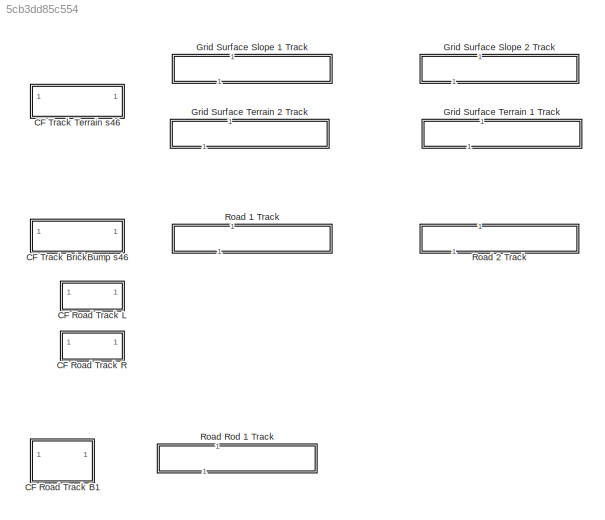
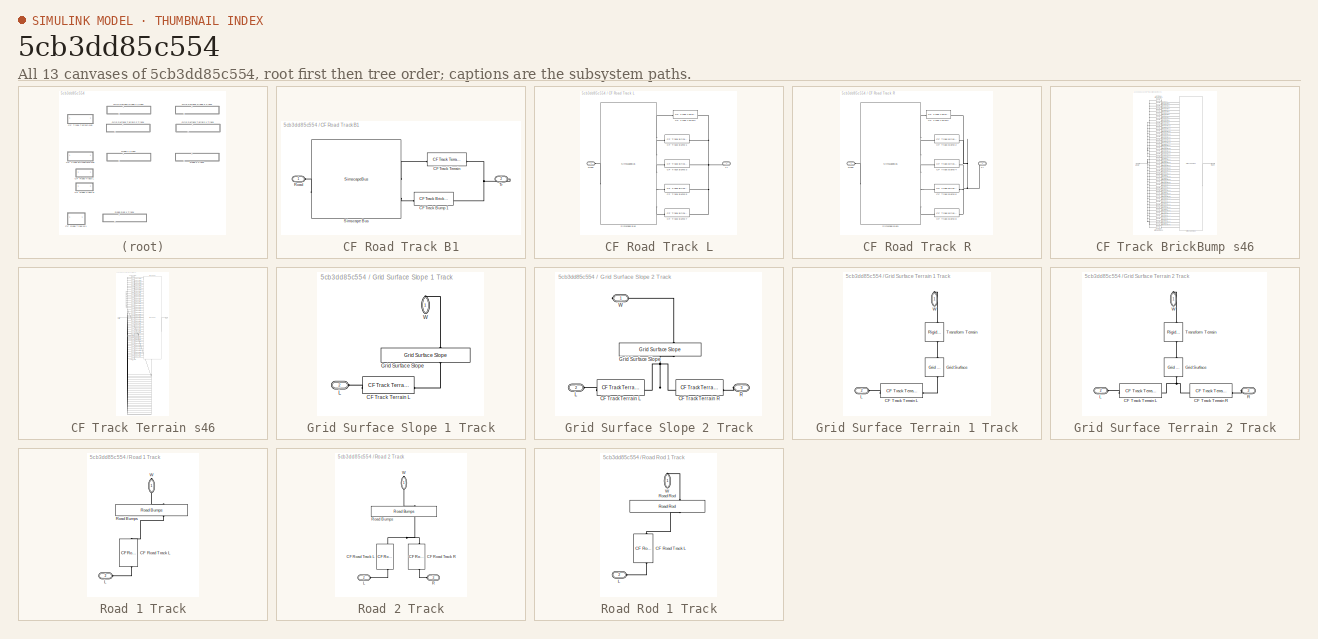
[diagram: thumbnail index - all 13 canvases of the model, root first then tree order]
MODEL slx_5cb3dd85c554
KIND library
CONFIG SolverName = VariableStepAuto
BLOCK [SubSystem] CF Road Track B1
BLOCK [Reference] CF Road Track B1/CF Track Bump 1  REF=$bdroot/CF Track BrickBump s46
  LibrarySourceBlock = sm_chain_drive_lib/CF_BrickBump_Full
  SourceBlock = $bdroot/CF Track BrickBump s46
  SourceType = Contact Forces, Full Track to Bump
BLOCK [Reference] CF Road Track B1/CF Track Terrain  REF=$bdroot/CF Track Terrain s46
  LibrarySourceBlock = sm_chain_drive_lib/CF_Road_Full
  SourceBlock = $bdroot/CF Track Terrain s46
  SourceType = Contact Forces, Full Track to Terrain
BLOCK [PMIOPort] CF Road Track B1/Road
  Side = Left
BLOCK [SimscapeBus] CF Road Track B1/Simscape Bus
  ConnectionType = Bus: CBO_Road8
  HierarchyStrings = Road;B1
  NameLocation = top
BLOCK [PMIOPort] CF Road Track B1/Tr
  Port = 2
  Side = Right
BLOCK [SubSystem] CF Road Track L
BLOCK [Reference] CF Road Track L/CF Track Bump 1  REF=$bdroot/CF Track BrickBump s46
  LibrarySourceBlock = sm_chain_drive_lib/CF_BrickBump_Full
  SourceBlock = $bdroot/CF Track BrickBump s46
  SourceType = Contact Forces, Full Track to Bump
BLOCK [Reference] CF Road Track L/CF Track Bump 3  REF=$bdroot/CF Track BrickBump s46
  LibrarySourceBlock = sm_chain_drive_lib/CF_BrickBump_Full
  SourceBlock = $bdroot/CF Track BrickBump s46
  SourceType = Contact Forces, Full Track to Bump
BLOCK [Reference] CF Road Track L/CF Track Bump 5  REF=$bdroot/CF Track BrickBump s46
  LibrarySourceBlock = sm_chain_drive_lib/CF_BrickBump_Full
  SourceBlock = $bdroot/CF Track BrickBump s46
  SourceType = Contact Forces, Full Track to Bump
BLOCK [Reference] CF Road Track L/CF Track Bump 7  REF=$bdroot/CF Track BrickBump s46
  LibrarySourceBlock = sm_chain_drive_lib/CF_BrickBump_Full
  SourceBlock = $bdroot/CF Track BrickBump s46
  SourceType = Contact Forces, Full Track to Bump
BLOCK [Reference] CF Road Track L/CF Track Terrain  REF=$bdroot/CF Track Terrain s46
  LibrarySourceBlock = sm_chain_drive_lib/CF_Road_Full
  SourceBlock = $bdroot/CF Track Terrain s46
  SourceType = Contact Forces, Full Track to Terrain
BLOCK [PMIOPort] CF Road Track L/Road
  Side = Left
BLOCK [SimscapeBus] CF Road Track L/Simscape Bus
  ConnectionType = Bus: CBO_Road8
  HierarchyStrings = Road;B1;B3;B5;B7
  NameLocation = top
BLOCK [PMIOPort] CF Road Track L/Tr
  Port = 2
  Side = Right
BLOCK [SubSystem] CF Road Track R
BLOCK [Reference] CF Road Track R/CF Track Bump 2  REF=$bdroot/CF Track BrickBump s46
  LibrarySourceBlock = sm_chain_drive_lib/CF_BrickBump_Full
  SourceBlock = $bdroot/CF Track BrickBump s46
  SourceType = Contact Forces, Full Track to Bump
BLOCK [Reference] CF Road Track R/CF Track Bump 4  REF=$bdroot/CF Track BrickBump s46
  LibrarySourceBlock = sm_chain_drive_lib/CF_BrickBump_Full
  SourceBlock = $bdroot/CF Track BrickBump s46
  SourceType = Contact Forces, Full Track to Bump
BLOCK [Reference] CF Road Track R/CF Track Bump 6  REF=$bdroot/CF Track BrickBump s46
  LibrarySourceBlock = sm_chain_drive_lib/CF_BrickBump_Full
  SourceBlock = $bdroot/CF Track BrickBump s46
  SourceType = Contact Forces, Full Track to Bump
BLOCK [Reference] CF Road Track R/CF Track Bump 8  REF=$bdroot/CF Track BrickBump s46
  LibrarySourceBlock = sm_chain_drive_lib/CF_BrickBump_Full
  SourceBlock = $bdroot/CF Track BrickBump s46
  SourceType = Contact Forces, Full Track to Bump
BLOCK [Reference] CF Road Track R/CF Track Terrain  REF=$bdroot/CF Track Terrain s46
  LibrarySourceBlock = sm_chain_drive_lib/CF_Road_Full
  SourceBlock = $bdroot/CF Track Terrain s46
  SourceType = Contact Forces, Full Track to Terrain
BLOCK [PMIOPort] CF Road Track R/Road
  Side = Left
BLOCK [SimscapeBus] CF Road Track R/Simscape Bus1
  ConnectionType = Bus: CBO_Road8
  HierarchyStrings = Road;B2;B4;B6;B8
  NameLocation = top
BLOCK [PMIOPort] CF Road Track R/Tr
  Port = 2
  Side = Right
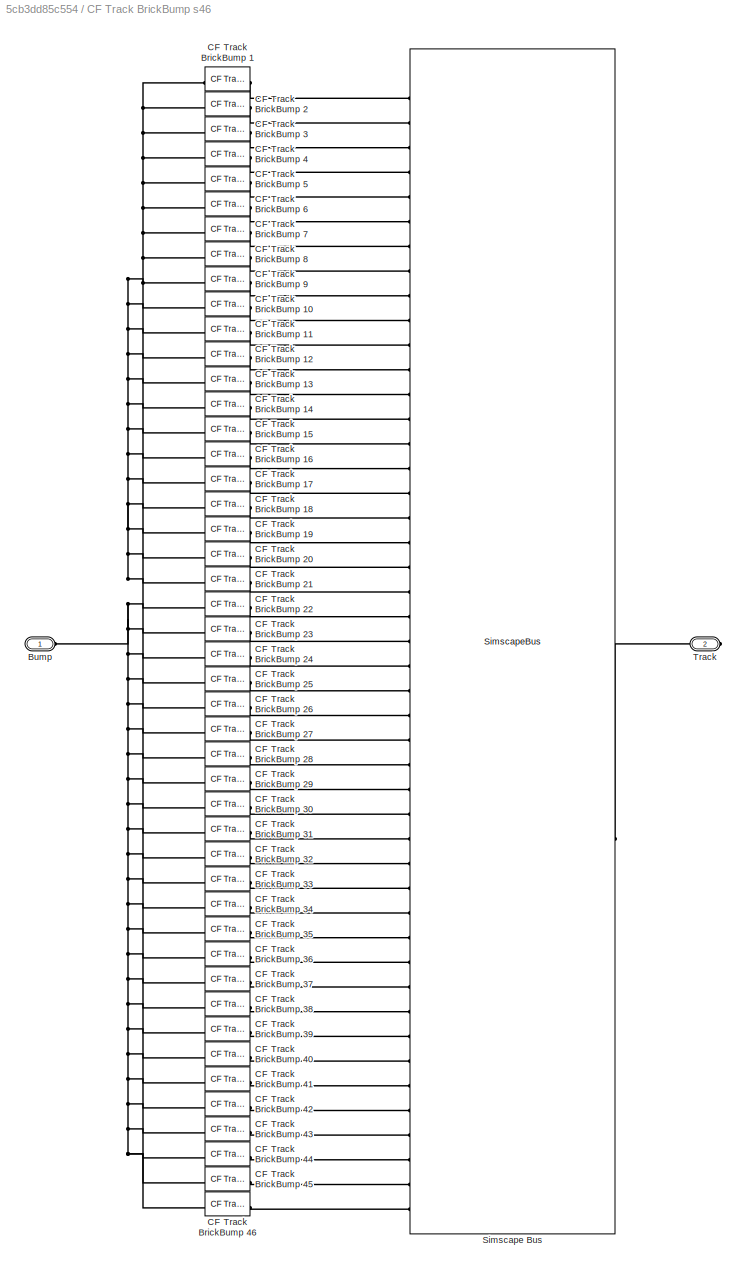
BLOCK [SubSystem] CF Track BrickBump s46
BLOCK [PMIOPort] CF Track BrickBump s46/Bump
  Side = Left
BLOCK [Reference] CF Track BrickBump s46/CF Track BrickBump 1  REF=sm_trackV_lib_terrain_contact_elem/CF Track BrickBump
  LibrarySourceBlock = sm_chain_drive_lib/CF_BrickBump
  NameLocation = right
  SourceBlock = sm_trackV_lib_terrain_contact_elem/CF Track BrickBump
  SourceType = Contact Force, Track Segment to Bump
BLOCK [Reference] CF Track BrickBump s46/CF Track BrickBump 10  REF=sm_trackV_lib_terrain_contact_elem/CF Track BrickBump
  LibrarySourceBlock = sm_chain_drive_lib/CF_BrickBump
  NameLocation = right
  SourceBlock = sm_trackV_lib_terrain_contact_elem/CF Track BrickBump
  SourceType = Contact Force, Track Segment to Bump
BLOCK [Reference] CF Track BrickBump s46/CF Track BrickBump 11  REF=sm_trackV_lib_terrain_contact_elem/CF Track BrickBump
  LibrarySourceBlock = sm_chain_drive_lib/CF_BrickBump
  NameLocation = right
  SourceBlock = sm_trackV_lib_terrain_contact_elem/CF Track BrickBump
  SourceType = Contact Force, Track Segment to Bump
BLOCK [Reference] CF Track BrickBump s46/CF Track BrickBump 12  REF=sm_trackV_lib_terrain_contact_elem/CF Track BrickBump
  LibrarySourceBlock = sm_chain_drive_lib/CF_BrickBump
  NameLocation = right
  SourceBlock = sm_trackV_lib_terrain_contact_elem/CF Track BrickBump
  SourceType = Contact Force, Track Segment to Bump
BLOCK [Reference] CF Track BrickBump s46/CF Track BrickBump 13  REF=sm_trackV_lib_terrain_contact_elem/CF Track BrickBump
  LibrarySourceBlock = sm_chain_drive_lib/CF_BrickBump
  NameLocation = right
  SourceBlock = sm_trackV_lib_terrain_contact_elem/CF Track BrickBump
  SourceType = Contact Force, Track Segment to Bump
BLOCK [Reference] CF Track BrickBump s46/CF Track BrickBump 14  REF=sm_trackV_lib_terrain_contact_elem/CF Track BrickBump
  LibrarySourceBlock = sm_chain_drive_lib/CF_BrickBump
  NameLocation = right
  SourceBlock = sm_trackV_lib_terrain_contact_elem/CF Track BrickBump
  SourceType = Contact Force, Track Segment to Bump
BLOCK [Reference] CF Track BrickBump s46/CF Track BrickBump 15  REF=sm_trackV_lib_terrain_contact_elem/CF Track BrickBump
  LibrarySourceBlock = sm_chain_drive_lib/CF_BrickBump
  NameLocation = right
  SourceBlock = sm_trackV_lib_terrain_contact_elem/CF Track BrickBump
  SourceType = Contact Force, Track Segment to Bump
BLOCK [Reference] CF Track BrickBump s46/CF Track BrickBump 16  REF=sm_trackV_lib_terrain_contact_elem/CF Track BrickBump
  LibrarySourceBlock = sm_chain_drive_lib/CF_BrickBump
  NameLocation = right
  SourceBlock = sm_trackV_lib_terrain_contact_elem/CF Track BrickBump
  SourceType = Contact Force, Track Segment to Bump
BLOCK [Reference] CF Track BrickBump s46/CF Track BrickBump 17  REF=sm_trackV_lib_terrain_contact_elem/CF Track BrickBump
  LibrarySourceBlock = sm_chain_drive_lib/CF_BrickBump
  NameLocation = right
  SourceBlock = sm_trackV_lib_terrain_contact_elem/CF Track BrickBump
  SourceType = Contact Force, Track Segment to Bump
BLOCK [Reference] CF Track BrickBump s46/CF Track BrickBump 18  REF=sm_trackV_lib_terrain_contact_elem/CF Track BrickBump
  LibrarySourceBlock = sm_chain_drive_lib/CF_BrickBump
  NameLocation = right
  SourceBlock = sm_trackV_lib_terrain_contact_elem/CF Track BrickBump
  SourceType = Contact Force, Track Segment to Bump
BLOCK [Reference] CF Track BrickBump s46/CF Track BrickBump 19  REF=sm_trackV_lib_terrain_contact_elem/CF Track BrickBump
  LibrarySourceBlock = sm_chain_drive_lib/CF_BrickBump
  NameLocation = right
  SourceBlock = sm_trackV_lib_terrain_contact_elem/CF Track BrickBump
  SourceType = Contact Force, Track Segment to Bump
BLOCK [Reference] CF Track BrickBump s46/CF Track BrickBump 2  REF=sm_trackV_lib_terrain_contact_elem/CF Track BrickBump
  LibrarySourceBlock = sm_chain_drive_lib/CF_BrickBump
  NameLocation = right
  SourceBlock = sm_trackV_lib_terrain_contact_elem/CF Track BrickBump
  SourceType = Contact Force, Track Segment to Bump
BLOCK [Reference] CF Track BrickBump s46/CF Track BrickBump 20  REF=sm_trackV_lib_terrain_contact_elem/CF Track BrickBump
  LibrarySourceBlock = sm_chain_drive_lib/CF_BrickBump
  NameLocation = right
  SourceBlock = sm_trackV_lib_terrain_contact_elem/CF Track BrickBump
  SourceType = Contact Force, Track Segment to Bump
BLOCK [Reference] CF Track BrickBump s46/CF Track BrickBump 21  REF=sm_trackV_lib_terrain_contact_elem/CF Track BrickBump
  LibrarySourceBlock = sm_chain_drive_lib/CF_BrickBump
  NameLocation = right
  SourceBlock = sm_trackV_lib_terrain_contact_elem/CF Track BrickBump
  SourceType = Contact Force, Track Segment to Bump
BLOCK [Reference] CF Track BrickBump s46/CF Track BrickBump 22  REF=sm_trackV_lib_terrain_contact_elem/CF Track BrickBump
  LibrarySourceBlock = sm_chain_drive_lib/CF_BrickBump
  NameLocation = right
  SourceBlock = sm_trackV_lib_terrain_contact_elem/CF Track BrickBump
  SourceType = Contact Force, Track Segment to Bump
BLOCK [Reference] CF Track BrickBump s46/CF Track BrickBump 23  REF=sm_trackV_lib_terrain_contact_elem/CF Track BrickBump
  LibrarySourceBlock = sm_chain_drive_lib/CF_BrickBump
  NameLocation = right
  SourceBlock = sm_trackV_lib_terrain_contact_elem/CF Track BrickBump
  SourceType = Contact Force, Track Segment to Bump
BLOCK [Reference] CF Track BrickBump s46/CF Track BrickBump 24  REF=sm_trackV_lib_terrain_contact_elem/CF Track BrickBump
  LibrarySourceBlock = sm_chain_drive_lib/CF_BrickBump
  NameLocation = right
  SourceBlock = sm_trackV_lib_terrain_contact_elem/CF Track BrickBump
  SourceType = Contact Force, Track Segment to Bump
BLOCK [Reference] CF Track BrickBump s46/CF Track BrickBump 25  REF=sm_trackV_lib_terrain_contact_elem/CF Track BrickBump
  LibrarySourceBlock = sm_chain_drive_lib/CF_BrickBump
  NameLocation = right
  SourceBlock = sm_trackV_lib_terrain_contact_elem/CF Track BrickBump
  SourceType = Contact Force, Track Segment to Bump
BLOCK [Reference] CF Track BrickBump s46/CF Track BrickBump 26  REF=sm_trackV_lib_terrain_contact_elem/CF Track BrickBump
  LibrarySourceBlock = sm_chain_drive_lib/CF_BrickBump
  NameLocation = right
  SourceBlock = sm_trackV_lib_terrain_contact_elem/CF Track BrickBump
  SourceType = Contact Force, Track Segment to Bump
BLOCK [Reference] CF Track BrickBump s46/CF Track BrickBump 27  REF=sm_trackV_lib_terrain_contact_elem/CF Track BrickBump
  LibrarySourceBlock = sm_chain_drive_lib/CF_BrickBump
  NameLocation = right
  SourceBlock = sm_trackV_lib_terrain_contact_elem/CF Track BrickBump
  SourceType = Contact Force, Track Segment to Bump
BLOCK [Reference] CF Track BrickBump s46/CF Track BrickBump 28  REF=sm_trackV_lib_terrain_contact_elem/CF Track BrickBump
  LibrarySourceBlock = sm_chain_drive_lib/CF_BrickBump
  NameLocation = right
  SourceBlock = sm_trackV_lib_terrain_contact_elem/CF Track BrickBump
  SourceType = Contact Force, Track Segment to Bump
BLOCK [Reference] CF Track BrickBump s46/CF Track BrickBump 29  REF=sm_trackV_lib_terrain_contact_elem/CF Track BrickBump
  LibrarySourceBlock = sm_chain_drive_lib/CF_BrickBump
  NameLocation = right
  SourceBlock = sm_trackV_lib_terrain_contact_elem/CF Track BrickBump
  SourceType = Contact Force, Track Segment to Bump
BLOCK [Reference] CF Track BrickBump s46/CF Track BrickBump 3  REF=sm_trackV_lib_terrain_contact_elem/CF Track BrickBump
  LibrarySourceBlock = sm_chain_drive_lib/CF_BrickBump
  NameLocation = right
  SourceBlock = sm_trackV_lib_terrain_contact_elem/CF Track BrickBump
  SourceType = Contact Force, Track Segment to Bump
BLOCK [Reference] CF Track BrickBump s46/CF Track BrickBump 30  REF=sm_trackV_lib_terrain_contact_elem/CF Track BrickBump
  LibrarySourceBlock = sm_chain_drive_lib/CF_BrickBump
  NameLocation = right
  SourceBlock = sm_trackV_lib_terrain_contact_elem/CF Track BrickBump
  SourceType = Contact Force, Track Segment to Bump
BLOCK [Reference] CF Track BrickBump s46/CF Track BrickBump 31  REF=sm_trackV_lib_terrain_contact_elem/CF Track BrickBump
  LibrarySourceBlock = sm_chain_drive_lib/CF_BrickBump
  NameLocation = right
  SourceBlock = sm_trackV_lib_terrain_contact_elem/CF Track BrickBump
  SourceType = Contact Force, Track Segment to Bump
BLOCK [Reference] CF Track BrickBump s46/CF Track BrickBump 32  REF=sm_trackV_lib_terrain_contact_elem/CF Track BrickBump
  LibrarySourceBlock = sm_chain_drive_lib/CF_BrickBump
  NameLocation = right
  SourceBlock = sm_trackV_lib_terrain_contact_elem/CF Track BrickBump
  SourceType = Contact Force, Track Segment to Bump
BLOCK [Reference] CF Track BrickBump s46/CF Track BrickBump 33  REF=sm_trackV_lib_terrain_contact_elem/CF Track BrickBump
  LibrarySourceBlock = sm_chain_drive_lib/CF_BrickBump
  NameLocation = right
  SourceBlock = sm_trackV_lib_terrain_contact_elem/CF Track BrickBump
  SourceType = Contact Force, Track Segment to Bump
BLOCK [Reference] CF Track BrickBump s46/CF Track BrickBump 34  REF=sm_trackV_lib_terrain_contact_elem/CF Track BrickBump
  LibrarySourceBlock = sm_chain_drive_lib/CF_BrickBump
  NameLocation = right
  SourceBlock = sm_trackV_lib_terrain_contact_elem/CF Track BrickBump
  SourceType = Contact Force, Track Segment to Bump
BLOCK [Reference] CF Track BrickBump s46/CF Track BrickBump 35  REF=sm_trackV_lib_terrain_contact_elem/CF Track BrickBump
  LibrarySourceBlock = sm_chain_drive_lib/CF_BrickBump
  NameLocation = right
  SourceBlock = sm_trackV_lib_terrain_contact_elem/CF Track BrickBump
  SourceType = Contact Force, Track Segment to Bump
BLOCK [Reference] CF Track BrickBump s46/CF Track BrickBump 36  REF=sm_trackV_lib_terrain_contact_elem/CF Track BrickBump
  LibrarySourceBlock = sm_chain_drive_lib/CF_BrickBump
  NameLocation = right
  SourceBlock = sm_trackV_lib_terrain_contact_elem/CF Track BrickBump
  SourceType = Contact Force, Track Segment to Bump
BLOCK [Reference] CF Track BrickBump s46/CF Track BrickBump 37  REF=sm_trackV_lib_terrain_contact_elem/CF Track BrickBump
  LibrarySourceBlock = sm_chain_drive_lib/CF_BrickBump
  NameLocation = right
  SourceBlock = sm_trackV_lib_terrain_contact_elem/CF Track BrickBump
  SourceType = Contact Force, Track Segment to Bump
BLOCK [Reference] CF Track BrickBump s46/CF Track BrickBump 38  REF=sm_trackV_lib_terrain_contact_elem/CF Track BrickBump
  LibrarySourceBlock = sm_chain_drive_lib/CF_BrickBump
  NameLocation = right
  SourceBlock = sm_trackV_lib_terrain_contact_elem/CF Track BrickBump
  SourceType = Contact Force, Track Segment to Bump
BLOCK [Reference] CF Track BrickBump s46/CF Track BrickBump 39  REF=sm_trackV_lib_terrain_contact_elem/CF Track BrickBump
  LibrarySourceBlock = sm_chain_drive_lib/CF_BrickBump
  NameLocation = right
  SourceBlock = sm_trackV_lib_terrain_contact_elem/CF Track BrickBump
  SourceType = Contact Force, Track Segment to Bump
BLOCK [Reference] CF Track BrickBump s46/CF Track BrickBump 4  REF=sm_trackV_lib_terrain_contact_elem/CF Track BrickBump
  LibrarySourceBlock = sm_chain_drive_lib/CF_BrickBump
  NameLocation = right
  SourceBlock = sm_trackV_lib_terrain_contact_elem/CF Track BrickBump
  SourceType = Contact Force, Track Segment to Bump
BLOCK [Reference] CF Track BrickBump s46/CF Track BrickBump 40  REF=sm_trackV_lib_terrain_contact_elem/CF Track BrickBump
  LibrarySourceBlock = sm_chain_drive_lib/CF_BrickBump
  NameLocation = right
  SourceBlock = sm_trackV_lib_terrain_contact_elem/CF Track BrickBump
  SourceType = Contact Force, Track Segment to Bump
BLOCK [Reference] CF Track BrickBump s46/CF Track BrickBump 41  REF=sm_trackV_lib_terrain_contact_elem/CF Track BrickBump
  LibrarySourceBlock = sm_chain_drive_lib/CF_BrickBump
  NameLocation = right
  SourceBlock = sm_trackV_lib_terrain_contact_elem/CF Track BrickBump
  SourceType = Contact Force, Track Segment to Bump
BLOCK [Reference] CF Track BrickBump s46/CF Track BrickBump 42  REF=sm_trackV_lib_terrain_contact_elem/CF Track BrickBump
  LibrarySourceBlock = sm_chain_drive_lib/CF_BrickBump
  NameLocation = right
  SourceBlock = sm_trackV_lib_terrain_contact_elem/CF Track BrickBump
  SourceType = Contact Force, Track Segment to Bump
BLOCK [Reference] CF Track BrickBump s46/CF Track BrickBump 43  REF=sm_trackV_lib_terrain_contact_elem/CF Track BrickBump
  LibrarySourceBlock = sm_chain_drive_lib/CF_BrickBump
  NameLocation = right
  SourceBlock = sm_trackV_lib_terrain_contact_elem/CF Track BrickBump
  SourceType = Contact Force, Track Segment to Bump
BLOCK [Reference] CF Track BrickBump s46/CF Track BrickBump 44  REF=sm_trackV_lib_terrain_contact_elem/CF Track BrickBump
  LibrarySourceBlock = sm_chain_drive_lib/CF_BrickBump
  NameLocation = right
  SourceBlock = sm_trackV_lib_terrain_contact_elem/CF Track BrickBump
  SourceType = Contact Force, Track Segment to Bump
BLOCK [Reference] CF Track BrickBump s46/CF Track BrickBump 45  REF=sm_trackV_lib_terrain_contact_elem/CF Track BrickBump
  LibrarySourceBlock = sm_chain_drive_lib/CF_BrickBump
  NameLocation = right
  SourceBlock = sm_trackV_lib_terrain_contact_elem/CF Track BrickBump
  SourceType = Contact Force, Track Segment to Bump
BLOCK [Reference] CF Track BrickBump s46/CF Track BrickBump 46  REF=sm_trackV_lib_terrain_contact_elem/CF Track BrickBump
  LibrarySourceBlock = sm_chain_drive_lib/CF_BrickBump
  NameLocation = right
  SourceBlock = sm_trackV_lib_terrain_contact_elem/CF Track BrickBump
  SourceType = Contact Force, Track Segment to Bump
BLOCK [Reference] CF Track BrickBump s46/CF Track BrickBump 5  REF=sm_trackV_lib_terrain_contact_elem/CF Track BrickBump
  LibrarySourceBlock = sm_chain_drive_lib/CF_BrickBump
  NameLocation = right
  SourceBlock = sm_trackV_lib_terrain_contact_elem/CF Track BrickBump
  SourceType = Contact Force, Track Segment to Bump
BLOCK [Reference] CF Track BrickBump s46/CF Track BrickBump 6  REF=sm_trackV_lib_terrain_contact_elem/CF Track BrickBump
  LibrarySourceBlock = sm_chain_drive_lib/CF_BrickBump
  NameLocation = right
  SourceBlock = sm_trackV_lib_terrain_contact_elem/CF Track BrickBump
  SourceType = Contact Force, Track Segment to Bump
BLOCK [Reference] CF Track BrickBump s46/CF Track BrickBump 7  REF=sm_trackV_lib_terrain_contact_elem/CF Track BrickBump
  LibrarySourceBlock = sm_chain_drive_lib/CF_BrickBump
  NameLocation = right
  SourceBlock = sm_trackV_lib_terrain_contact_elem/CF Track BrickBump
  SourceType = Contact Force, Track Segment to Bump
BLOCK [Reference] CF Track BrickBump s46/CF Track BrickBump 8  REF=sm_trackV_lib_terrain_contact_elem/CF Track BrickBump
  LibrarySourceBlock = sm_chain_drive_lib/CF_BrickBump
  NameLocation = right
  SourceBlock = sm_trackV_lib_terrain_contact_elem/CF Track BrickBump
  SourceType = Contact Force, Track Segment to Bump
BLOCK [Reference] CF Track BrickBump s46/CF Track BrickBump 9  REF=sm_trackV_lib_terrain_contact_elem/CF Track BrickBump
  LibrarySourceBlock = sm_chain_drive_lib/CF_BrickBump
  NameLocation = right
  SourceBlock = sm_trackV_lib_terrain_contact_elem/CF Track BrickBump
  SourceType = Contact Force, Track Segment to Bump
BLOCK [SimscapeBus] CF Track BrickBump s46/Simscape Bus
  ConnectionType = Bus: CBO_Chain46
  HierarchyStrings = L1;L2;L3;L4;L5;L6;L7;L8;L9;L10;L11;L12;L13;L14;L15;L16;L17;L18;L19;L20;L21;L22;L23;L24;L25;L26;L27;L28;L29;L30;L31;L32;L33;L34;L35;L36;L37;L38;L39;L40;L41;L42;L43;L44;L45;L46
BLOCK [PMIOPort] CF Track BrickBump s46/Track
  NameLocation = top
  Port = 2
  Side = Right
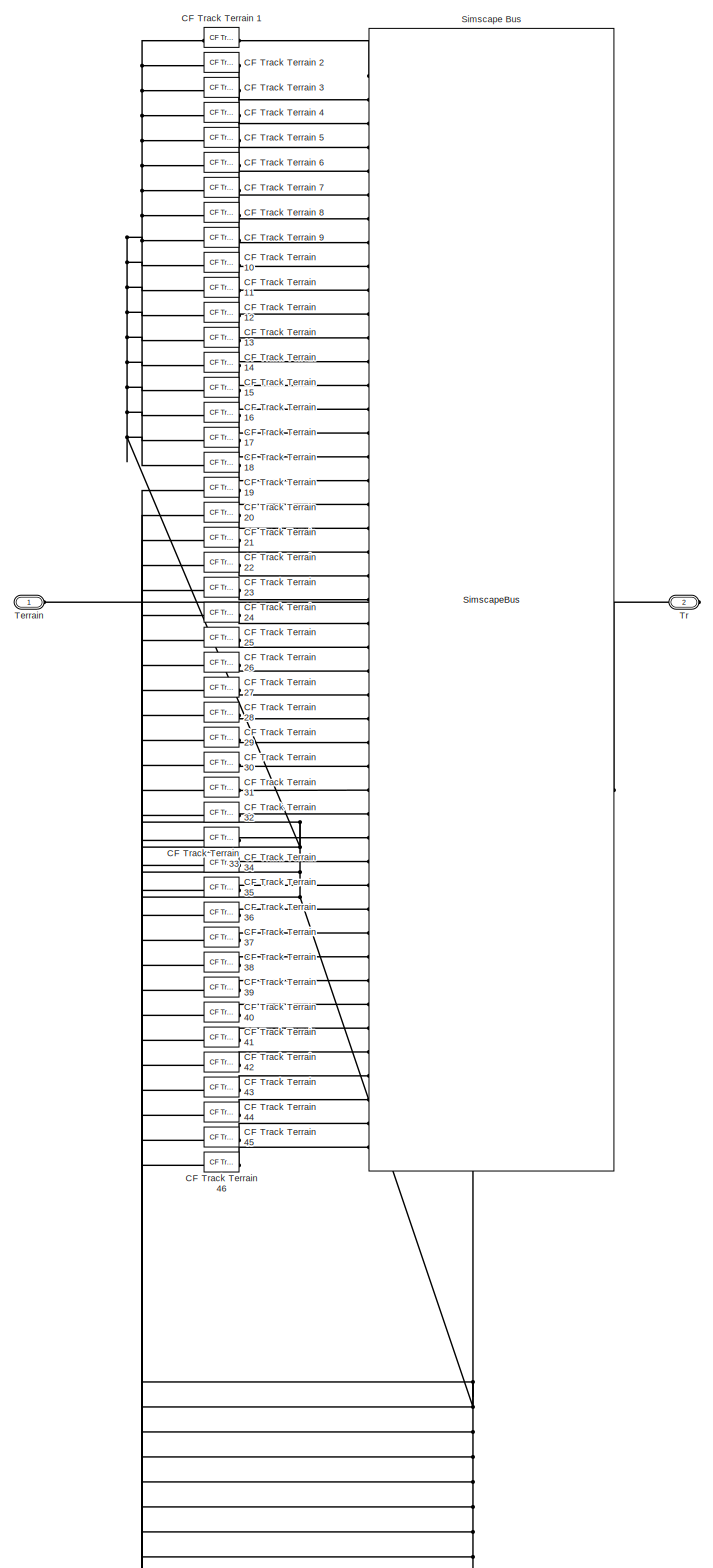
[diagram: CF Track Terrain s46 - part 1/1, most of the canvas]
BLOCK [SubSystem] CF Track Terrain s46
BLOCK [Reference] CF Track Terrain s46/CF Track Terrain 1  REF=sm_trackV_lib_terrain_contact_elem/CF Track Terrain
  LibrarySourceBlock = sm_chain_drive_lib/CF_Road
  NameLocation = right
  SourceBlock = sm_trackV_lib_terrain_contact_elem/CF Track Terrain
  SourceType = Contact Force, Track Segment to Terrain
BLOCK [Reference] CF Track Terrain s46/CF Track Terrain 10  REF=sm_trackV_lib_terrain_contact_elem/CF Track Terrain
  LibrarySourceBlock = sm_chain_drive_lib/CF_Road
  NameLocation = right
  SourceBlock = sm_trackV_lib_terrain_contact_elem/CF Track Terrain
  SourceType = Contact Force, Track Segment to Terrain
BLOCK [Reference] CF Track Terrain s46/CF Track Terrain 11  REF=sm_trackV_lib_terrain_contact_elem/CF Track Terrain
  LibrarySourceBlock = sm_chain_drive_lib/CF_Road
  NameLocation = right
  SourceBlock = sm_trackV_lib_terrain_contact_elem/CF Track Terrain
  SourceType = Contact Force, Track Segment to Terrain
BLOCK [Reference] CF Track Terrain s46/CF Track Terrain 12  REF=sm_trackV_lib_terrain_contact_elem/CF Track Terrain
  LibrarySourceBlock = sm_chain_drive_lib/CF_Road
  NameLocation = right
  SourceBlock = sm_trackV_lib_terrain_contact_elem/CF Track Terrain
  SourceType = Contact Force, Track Segment to Terrain
BLOCK [Reference] CF Track Terrain s46/CF Track Terrain 13  REF=sm_trackV_lib_terrain_contact_elem/CF Track Terrain
  LibrarySourceBlock = sm_chain_drive_lib/CF_Road
  NameLocation = right
  SourceBlock = sm_trackV_lib_terrain_contact_elem/CF Track Terrain
  SourceType = Contact Force, Track Segment to Terrain
BLOCK [Reference] CF Track Terrain s46/CF Track Terrain 14  REF=sm_trackV_lib_terrain_contact_elem/CF Track Terrain
  LibrarySourceBlock = sm_chain_drive_lib/CF_Road
  NameLocation = right
  SourceBlock = sm_trackV_lib_terrain_contact_elem/CF Track Terrain
  SourceType = Contact Force, Track Segment to Terrain
BLOCK [Reference] CF Track Terrain s46/CF Track Terrain 15  REF=sm_trackV_lib_terrain_contact_elem/CF Track Terrain
  LibrarySourceBlock = sm_chain_drive_lib/CF_Road
  NameLocation = right
  SourceBlock = sm_trackV_lib_terrain_contact_elem/CF Track Terrain
  SourceType = Contact Force, Track Segment to Terrain
BLOCK [Reference] CF Track Terrain s46/CF Track Terrain 16  REF=sm_trackV_lib_terrain_contact_elem/CF Track Terrain
  LibrarySourceBlock = sm_chain_drive_lib/CF_Road
  NameLocation = right
  SourceBlock = sm_trackV_lib_terrain_contact_elem/CF Track Terrain
  SourceType = Contact Force, Track Segment to Terrain
BLOCK [Reference] CF Track Terrain s46/CF Track Terrain 17  REF=sm_trackV_lib_terrain_contact_elem/CF Track Terrain
  LibrarySourceBlock = sm_chain_drive_lib/CF_Road
  NameLocation = right
  SourceBlock = sm_trackV_lib_terrain_contact_elem/CF Track Terrain
  SourceType = Contact Force, Track Segment to Terrain
BLOCK [Reference] CF Track Terrain s46/CF Track Terrain 18  REF=sm_trackV_lib_terrain_contact_elem/CF Track Terrain
  LibrarySourceBlock = sm_chain_drive_lib/CF_Road
  NameLocation = right
  SourceBlock = sm_trackV_lib_terrain_contact_elem/CF Track Terrain
  SourceType = Contact Force, Track Segment to Terrain
BLOCK [Reference] CF Track Terrain s46/CF Track Terrain 19  REF=sm_trackV_lib_terrain_contact_elem/CF Track Terrain
  LibrarySourceBlock = sm_chain_drive_lib/CF_Road
  NameLocation = right
  SourceBlock = sm_trackV_lib_terrain_contact_elem/CF Track Terrain
  SourceType = Contact Force, Track Segment to Terrain
BLOCK [Reference] CF Track Terrain s46/CF Track Terrain 2  REF=sm_trackV_lib_terrain_contact_elem/CF Track Terrain
  LibrarySourceBlock = sm_chain_drive_lib/CF_Road
  NameLocation = right
  SourceBlock = sm_trackV_lib_terrain_contact_elem/CF Track Terrain
  SourceType = Contact Force, Track Segment to Terrain
BLOCK [Reference] CF Track Terrain s46/CF Track Terrain 20  REF=sm_trackV_lib_terrain_contact_elem/CF Track Terrain
  LibrarySourceBlock = sm_chain_drive_lib/CF_Road
  NameLocation = right
  SourceBlock = sm_trackV_lib_terrain_contact_elem/CF Track Terrain
  SourceType = Contact Force, Track Segment to Terrain
BLOCK [Reference] CF Track Terrain s46/CF Track Terrain 21  REF=sm_trackV_lib_terrain_contact_elem/CF Track Terrain
  LibrarySourceBlock = sm_chain_drive_lib/CF_Road
  NameLocation = right
  SourceBlock = sm_trackV_lib_terrain_contact_elem/CF Track Terrain
  SourceType = Contact Force, Track Segment to Terrain
BLOCK [Reference] CF Track Terrain s46/CF Track Terrain 22  REF=sm_trackV_lib_terrain_contact_elem/CF Track Terrain
  LibrarySourceBlock = sm_chain_drive_lib/CF_Road
  NameLocation = right
  SourceBlock = sm_trackV_lib_terrain_contact_elem/CF Track Terrain
  SourceType = Contact Force, Track Segment to Terrain
BLOCK [Reference] CF Track Terrain s46/CF Track Terrain 23  REF=sm_trackV_lib_terrain_contact_elem/CF Track Terrain
  LibrarySourceBlock = sm_chain_drive_lib/CF_Road
  NameLocation = right
  SourceBlock = sm_trackV_lib_terrain_contact_elem/CF Track Terrain
  SourceType = Contact Force, Track Segment to Terrain
BLOCK [Reference] CF Track Terrain s46/CF Track Terrain 24  REF=sm_trackV_lib_terrain_contact_elem/CF Track Terrain
  LibrarySourceBlock = sm_chain_drive_lib/CF_Road
  NameLocation = right
  SourceBlock = sm_trackV_lib_terrain_contact_elem/CF Track Terrain
  SourceType = Contact Force, Track Segment to Terrain
BLOCK [Reference] CF Track Terrain s46/CF Track Terrain 25  REF=sm_trackV_lib_terrain_contact_elem/CF Track Terrain
  LibrarySourceBlock = sm_chain_drive_lib/CF_Road
  NameLocation = right
  SourceBlock = sm_trackV_lib_terrain_contact_elem/CF Track Terrain
  SourceType = Contact Force, Track Segment to Terrain
BLOCK [Reference] CF Track Terrain s46/CF Track Terrain 26  REF=sm_trackV_lib_terrain_contact_elem/CF Track Terrain
  LibrarySourceBlock = sm_chain_drive_lib/CF_Road
  NameLocation = right
  SourceBlock = sm_trackV_lib_terrain_contact_elem/CF Track Terrain
  SourceType = Contact Force, Track Segment to Terrain
BLOCK [Reference] CF Track Terrain s46/CF Track Terrain 27  REF=sm_trackV_lib_terrain_contact_elem/CF Track Terrain
  LibrarySourceBlock = sm_chain_drive_lib/CF_Road
  NameLocation = right
  SourceBlock = sm_trackV_lib_terrain_contact_elem/CF Track Terrain
  SourceType = Contact Force, Track Segment to Terrain
BLOCK [Reference] CF Track Terrain s46/CF Track Terrain 28  REF=sm_trackV_lib_terrain_contact_elem/CF Track Terrain
  LibrarySourceBlock = sm_chain_drive_lib/CF_Road
  NameLocation = right
  SourceBlock = sm_trackV_lib_terrain_contact_elem/CF Track Terrain
  SourceType = Contact Force, Track Segment to Terrain
BLOCK [Reference] CF Track Terrain s46/CF Track Terrain 29  REF=sm_trackV_lib_terrain_contact_elem/CF Track Terrain
  LibrarySourceBlock = sm_chain_drive_lib/CF_Road
  NameLocation = right
  SourceBlock = sm_trackV_lib_terrain_contact_elem/CF Track Terrain
  SourceType = Contact Force, Track Segment to Terrain
BLOCK [Reference] CF Track Terrain s46/CF Track Terrain 3  REF=sm_trackV_lib_terrain_contact_elem/CF Track Terrain
  LibrarySourceBlock = sm_chain_drive_lib/CF_Road
  NameLocation = right
  SourceBlock = sm_trackV_lib_terrain_contact_elem/CF Track Terrain
  SourceType = Contact Force, Track Segment to Terrain
BLOCK [Reference] CF Track Terrain s46/CF Track Terrain 30  REF=sm_trackV_lib_terrain_contact_elem/CF Track Terrain
  LibrarySourceBlock = sm_chain_drive_lib/CF_Road
  NameLocation = right
  SourceBlock = sm_trackV_lib_terrain_contact_elem/CF Track Terrain
  SourceType = Contact Force, Track Segment to Terrain
BLOCK [Reference] CF Track Terrain s46/CF Track Terrain 31  REF=sm_trackV_lib_terrain_contact_elem/CF Track Terrain
  LibrarySourceBlock = sm_chain_drive_lib/CF_Road
  NameLocation = right
  SourceBlock = sm_trackV_lib_terrain_contact_elem/CF Track Terrain
  SourceType = Contact Force, Track Segment to Terrain
BLOCK [Reference] CF Track Terrain s46/CF Track Terrain 32  REF=sm_trackV_lib_terrain_contact_elem/CF Track Terrain
  LibrarySourceBlock = sm_chain_drive_lib/CF_Road
  NameLocation = right
  SourceBlock = sm_trackV_lib_terrain_contact_elem/CF Track Terrain
  SourceType = Contact Force, Track Segment to Terrain
BLOCK [Reference] CF Track Terrain s46/CF Track Terrain 33  REF=sm_trackV_lib_terrain_contact_elem/CF Track Terrain
  LibrarySourceBlock = sm_chain_drive_lib/CF_Road
  NameLocation = right
  SourceBlock = sm_trackV_lib_terrain_contact_elem/CF Track Terrain
  SourceType = Contact Force, Track Segment to Terrain
BLOCK [Reference] CF Track Terrain s46/CF Track Terrain 34  REF=sm_trackV_lib_terrain_contact_elem/CF Track Terrain
  LibrarySourceBlock = sm_chain_drive_lib/CF_Road
  NameLocation = right
  SourceBlock = sm_trackV_lib_terrain_contact_elem/CF Track Terrain
  SourceType = Contact Force, Track Segment to Terrain
BLOCK [Reference] CF Track Terrain s46/CF Track Terrain 35  REF=sm_trackV_lib_terrain_contact_elem/CF Track Terrain
  LibrarySourceBlock = sm_chain_drive_lib/CF_Road
  NameLocation = right
  SourceBlock = sm_trackV_lib_terrain_contact_elem/CF Track Terrain
  SourceType = Contact Force, Track Segment to Terrain
BLOCK [Reference] CF Track Terrain s46/CF Track Terrain 36  REF=sm_trackV_lib_terrain_contact_elem/CF Track Terrain
  LibrarySourceBlock = sm_chain_drive_lib/CF_Road
  NameLocation = right
  SourceBlock = sm_trackV_lib_terrain_contact_elem/CF Track Terrain
  SourceType = Contact Force, Track Segment to Terrain
BLOCK [Reference] CF Track Terrain s46/CF Track Terrain 37  REF=sm_trackV_lib_terrain_contact_elem/CF Track Terrain
  LibrarySourceBlock = sm_chain_drive_lib/CF_Road
  NameLocation = right
  SourceBlock = sm_trackV_lib_terrain_contact_elem/CF Track Terrain
  SourceType = Contact Force, Track Segment to Terrain
BLOCK [Reference] CF Track Terrain s46/CF Track Terrain 38  REF=sm_trackV_lib_terrain_contact_elem/CF Track Terrain
  LibrarySourceBlock = sm_chain_drive_lib/CF_Road
  NameLocation = right
  SourceBlock = sm_trackV_lib_terrain_contact_elem/CF Track Terrain
  SourceType = Contact Force, Track Segment to Terrain
BLOCK [Reference] CF Track Terrain s46/CF Track Terrain 39  REF=sm_trackV_lib_terrain_contact_elem/CF Track Terrain
  LibrarySourceBlock = sm_chain_drive_lib/CF_Road
  NameLocation = right
  SourceBlock = sm_trackV_lib_terrain_contact_elem/CF Track Terrain
  SourceType = Contact Force, Track Segment to Terrain
BLOCK [Reference] CF Track Terrain s46/CF Track Terrain 4  REF=sm_trackV_lib_terrain_contact_elem/CF Track Terrain
  LibrarySourceBlock = sm_chain_drive_lib/CF_Road
  NameLocation = right
  SourceBlock = sm_trackV_lib_terrain_contact_elem/CF Track Terrain
  SourceType = Contact Force, Track Segment to Terrain
BLOCK [Reference] CF Track Terrain s46/CF Track Terrain 40  REF=sm_trackV_lib_terrain_contact_elem/CF Track Terrain
  LibrarySourceBlock = sm_chain_drive_lib/CF_Road
  NameLocation = right
  SourceBlock = sm_trackV_lib_terrain_contact_elem/CF Track Terrain
  SourceType = Contact Force, Track Segment to Terrain
BLOCK [Reference] CF Track Terrain s46/CF Track Terrain 41  REF=sm_trackV_lib_terrain_contact_elem/CF Track Terrain
  LibrarySourceBlock = sm_chain_drive_lib/CF_Road
  NameLocation = right
  SourceBlock = sm_trackV_lib_terrain_contact_elem/CF Track Terrain
  SourceType = Contact Force, Track Segment to Terrain
BLOCK [Reference] CF Track Terrain s46/CF Track Terrain 42  REF=sm_trackV_lib_terrain_contact_elem/CF Track Terrain
  LibrarySourceBlock = sm_chain_drive_lib/CF_Road
  NameLocation = right
  SourceBlock = sm_trackV_lib_terrain_contact_elem/CF Track Terrain
  SourceType = Contact Force, Track Segment to Terrain
BLOCK [Reference] CF Track Terrain s46/CF Track Terrain 43  REF=sm_trackV_lib_terrain_contact_elem/CF Track Terrain
  LibrarySourceBlock = sm_chain_drive_lib/CF_Road
  NameLocation = right
  SourceBlock = sm_trackV_lib_terrain_contact_elem/CF Track Terrain
  SourceType = Contact Force, Track Segment to Terrain
BLOCK [Reference] CF Track Terrain s46/CF Track Terrain 44  REF=sm_trackV_lib_terrain_contact_elem/CF Track Terrain
  LibrarySourceBlock = sm_chain_drive_lib/CF_Road
  NameLocation = right
  SourceBlock = sm_trackV_lib_terrain_contact_elem/CF Track Terrain
  SourceType = Contact Force, Track Segment to Terrain
BLOCK [Reference] CF Track Terrain s46/CF Track Terrain 45  REF=sm_trackV_lib_terrain_contact_elem/CF Track Terrain
  LibrarySourceBlock = sm_chain_drive_lib/CF_Road
  NameLocation = right
  SourceBlock = sm_trackV_lib_terrain_contact_elem/CF Track Terrain
  SourceType = Contact Force, Track Segment to Terrain
BLOCK [Reference] CF Track Terrain s46/CF Track Terrain 46  REF=sm_trackV_lib_terrain_contact_elem/CF Track Terrain
  LibrarySourceBlock = sm_chain_drive_lib/CF_Road
  NameLocation = right
  SourceBlock = sm_trackV_lib_terrain_contact_elem/CF Track Terrain
  SourceType = Contact Force, Track Segment to Terrain
BLOCK [Reference] CF Track Terrain s46/CF Track Terrain 5  REF=sm_trackV_lib_terrain_contact_elem/CF Track Terrain
  LibrarySourceBlock = sm_chain_drive_lib/CF_Road
  NameLocation = right
  SourceBlock = sm_trackV_lib_terrain_contact_elem/CF Track Terrain
  SourceType = Contact Force, Track Segment to Terrain
BLOCK [Reference] CF Track Terrain s46/CF Track Terrain 6  REF=sm_trackV_lib_terrain_contact_elem/CF Track Terrain
  LibrarySourceBlock = sm_chain_drive_lib/CF_Road
  NameLocation = right
  SourceBlock = sm_trackV_lib_terrain_contact_elem/CF Track Terrain
  SourceType = Contact Force, Track Segment to Terrain
BLOCK [Reference] CF Track Terrain s46/CF Track Terrain 7  REF=sm_trackV_lib_terrain_contact_elem/CF Track Terrain
  LibrarySourceBlock = sm_chain_drive_lib/CF_Road
  NameLocation = right
  SourceBlock = sm_trackV_lib_terrain_contact_elem/CF Track Terrain
  SourceType = Contact Force, Track Segment to Terrain
BLOCK [Reference] CF Track Terrain s46/CF Track Terrain 8  REF=sm_trackV_lib_terrain_contact_elem/CF Track Terrain
  LibrarySourceBlock = sm_chain_drive_lib/CF_Road
  NameLocation = right
  SourceBlock = sm_trackV_lib_terrain_contact_elem/CF Track Terrain
  SourceType = Contact Force, Track Segment to Terrain
BLOCK [Reference] CF Track Terrain s46/CF Track Terrain 9  REF=sm_trackV_lib_terrain_contact_elem/CF Track Terrain
  LibrarySourceBlock = sm_chain_drive_lib/CF_Road
  NameLocation = right
  SourceBlock = sm_trackV_lib_terrain_contact_elem/CF Track Terrain
  SourceType = Contact Force, Track Segment to Terrain
BLOCK [SimscapeBus] CF Track Terrain s46/Simscape Bus
  ConnectionType = Bus: CBO_Chain46
  HierarchyStrings = L1;L2;L3;L4;L5;L6;L7;L8;L9;L10;L11;L12;L13;L14;L15;L16;L17;L18;L19;L20;L21;L22;L23;L24;L25;L26;L27;L28;L29;L30;L31;L32;L33;L34;L35;L36;L37;L38;L39;L40;L41;L42;L43;L44;L45;L46
BLOCK [PMIOPort] CF Track Terrain s46/Terrain
  Side = Left
BLOCK [PMIOPort] CF Track Terrain s46/Tr
  NameLocation = top
  Port = 2
  Side = Right
BLOCK [SubSystem] Grid Surface Slope 1 Track
  NameLocation = right
BLOCK [Reference] Grid Surface Slope 1 Track/CF Track Terrain L  REF=$bdroot/CF Track Terrain s46
  LibrarySourceBlock = sm_chain_drive_lib/CF_Road_Full
  SourceBlock = $bdroot/CF Track Terrain s46
  SourceType = Contact Forces, Full Track to Terrain
BLOCK [Reference] Grid Surface Slope 1 Track/Grid Surface Slope  REF=sm_excv_scene_lib/Grid Surface  (lib defined in slx_1cf3237a0358)
Slope
  NameLocation = right
  SourceBlock = sm_excv_scene_lib/Grid Surface\nSlope
  SourceType = Slope
BLOCK [PMIOPort] Grid Surface Slope 1 Track/L
  Port = 2
  Side = Left
BLOCK [PMIOPort] Grid Surface Slope 1 Track/W
  NameLocation = left
  Side = Right
BLOCK [SubSystem] Grid Surface Slope 2 Track
  NameLocation = right
BLOCK [Reference] Grid Surface Slope 2 Track/CF Track Terrain L  REF=$bdroot/CF Track Terrain s46
  LibrarySourceBlock = sm_chain_drive_lib/CF_Road_Full
  SourceBlock = $bdroot/CF Track Terrain s46
  SourceType = Contact Forces, Full Track to Terrain
BLOCK [Reference] Grid Surface Slope 2 Track/CF Track Terrain R  REF=$bdroot/CF Track Terrain s46
  LibrarySourceBlock = sm_chain_drive_lib/CF_Road_Full
  SourceBlock = $bdroot/CF Track Terrain s46
  SourceType = Contact Forces, Full Track to Terrain
BLOCK [Reference] Grid Surface Slope 2 Track/Grid Surface Slope  REF=sm_excv_scene_lib/Grid Surface  (lib defined in slx_1cf3237a0358)
Slope
  NameLocation = right
  SourceBlock = sm_excv_scene_lib/Grid Surface\nSlope
  SourceType = Slope
BLOCK [PMIOPort] Grid Surface Slope 2 Track/L
  Port = 2
  Side = Left
BLOCK [PMIOPort] Grid Surface Slope 2 Track/R
  Port = 3
  Side = Left
BLOCK [PMIOPort] Grid Surface Slope 2 Track/W
  Side = Right
BLOCK [SubSystem] Grid Surface Terrain 1 Track
  NameLocation = right
BLOCK [Reference] Grid Surface Terrain 1 Track/CF Track Terrain L  REF=$bdroot/CF Track Terrain s46
  LibrarySourceBlock = sm_chain_drive_lib/CF_Road_Full
  SourceBlock = $bdroot/CF Track Terrain s46
  SourceType = Contact Forces, Full Track to Terrain
BLOCK [Reference] Grid Surface Terrain 1 Track/Grid Surface  REF=sm_lib/Curves and Surfaces/Grid Surface
  NameLocation = right
  SourceBlock = sm_lib/Curves and Surfaces/Grid Surface
  SourceType = Grid Surface
BLOCK [PMIOPort] Grid Surface Terrain 1 Track/L
  Port = 2
  Side = Left
BLOCK [Reference] Grid Surface Terrain 1 Track/Transform Terrain  REF=sm_lib/Frames and
Transforms/Rigid
Transform
  NameLocation = left
  SourceBlock = sm_lib/Frames and\nTransforms/Rigid\nTransform
  SourceType = Rigid\nTransform
BLOCK [PMIOPort] Grid Surface Terrain 1 Track/W
  NameLocation = right
  Side = Right
BLOCK [SubSystem] Grid Surface Terrain 2 Track
  NameLocation = right
BLOCK [Reference] Grid Surface Terrain 2 Track/CF Track Terrain L  REF=$bdroot/CF Track Terrain s46
  LibrarySourceBlock = sm_chain_drive_lib/CF_Road_Full
  SourceBlock = $bdroot/CF Track Terrain s46
  SourceType = Contact Forces, Full Track to Terrain
BLOCK [Reference] Grid Surface Terrain 2 Track/CF Track Terrain R  REF=$bdroot/CF Track Terrain s46
  LibrarySourceBlock = sm_chain_drive_lib/CF_Road_Full
  SourceBlock = $bdroot/CF Track Terrain s46
  SourceType = Contact Forces, Full Track to Terrain
BLOCK [Reference] Grid Surface Terrain 2 Track/Grid Surface  REF=sm_lib/Curves and Surfaces/Grid Surface
  NameLocation = right
  SourceBlock = sm_lib/Curves and Surfaces/Grid Surface
  SourceType = Grid Surface
BLOCK [PMIOPort] Grid Surface Terrain 2 Track/L
  Port = 2
  Side = Left
BLOCK [PMIOPort] Grid Surface Terrain 2 Track/R
  Port = 3
  Side = Left
BLOCK [Reference] Grid Surface Terrain 2 Track/Transform Terrain  REF=sm_lib/Frames and
Transforms/Rigid
Transform
  NameLocation = left
  SourceBlock = sm_lib/Frames and\nTransforms/Rigid\nTransform
  SourceType = Rigid\nTransform
BLOCK [PMIOPort] Grid Surface Terrain 2 Track/W
  NameLocation = right
  Side = Right
BLOCK [SubSystem] Road 1 Track
  NameLocation = right
BLOCK [Reference] Road 1 Track/CF Road Track L  REF=$bdroot/CF Road Track L
  NameLocation = left
  SourceBlock = $bdroot/CF Road Track L
  SourceType = SubSystem
BLOCK [PMIOPort] Road 1 Track/L
  Port = 2
  Side = Left
BLOCK [Reference] Road 1 Track/Road Bumps  REF=sm_excv_scene_lib/Road  (lib defined in slx_1cf3237a0358)
Bumps
  NameLocation = right
  SourceBlock = sm_excv_scene_lib/Road\nBumps
BLOCK [PMIOPort] Road 1 Track/W
  NameLocation = right
  Side = Right
BLOCK [SubSystem] Road 2 Track
  NameLocation = right
BLOCK [Reference] Road 2 Track/CF Road Track L  REF=$bdroot/CF Road Track L
  NameLocation = left
  SourceBlock = $bdroot/CF Road Track L
  SourceType = SubSystem
BLOCK [Reference] Road 2 Track/CF Road Track R  REF=$bdroot/CF Road Track R
  NameLocation = right
  SourceBlock = $bdroot/CF Road Track R
  SourceType = SubSystem
BLOCK [PMIOPort] Road 2 Track/L
  Port = 2
  Side = Left
BLOCK [PMIOPort] Road 2 Track/R
  Port = 3
  Side = Left
BLOCK [Reference] Road 2 Track/Road Bumps  REF=sm_excv_scene_lib/Road  (lib defined in slx_1cf3237a0358)
Bumps
  NameLocation = right
  SourceBlock = sm_excv_scene_lib/Road\nBumps
BLOCK [PMIOPort] Road 2 Track/W
  NameLocation = right
  Side = Right
BLOCK [SubSystem] Road Rod 1 Track
  NameLocation = right
BLOCK [Reference] Road Rod 1 Track/CF Road Track L  REF=$bdroot/CF Road Track B1
  NameLocation = left
  SourceBlock = $bdroot/CF Road Track B1
  SourceType = SubSystem
BLOCK [PMIOPort] Road Rod 1 Track/L
  Port = 2
  Side = Left
BLOCK [Reference] Road Rod 1 Track/Road Rod  REF=sm_excv_scene_lib/Road  (lib defined in slx_1cf3237a0358)
Rod
  NameLocation = right
  SourceBlock = sm_excv_scene_lib/Road\nRod
BLOCK [PMIOPort] Road Rod 1 Track/W
  NameLocation = right
  Side = Right
PLINE CF Road Track B1/CF Track Bump 1:LConn1 -- CF Road Track B1/Simscape Bus:LConn2
PNET net1: CF Road Track B1/CF Track Bump 1:RConn1 -- CF Road Track B1/CF Track Terrain:RConn1 -- CF Road Track B1/Tr:RConn1
PLINE CF Road Track B1/CF Track Terrain:LConn1 -- CF Road Track B1/Simscape Bus:LConn1
PLINE CF Road Track B1/Road:RConn1 -- CF Road Track B1/Simscape Bus:RConn1
PLINE CF Road Track L/CF Track Bump 1:LConn1 -- CF Road Track L/Simscape Bus:LConn2
PNET net2: CF Road Track L/CF Track Bump 1:RConn1 -- CF Road Track L/CF Track Bump 3:RConn1 -- CF Road Track L/CF Track Bump 5:RConn1 -- CF Road Track L/CF Track Bump 7:RConn1 -- CF Road Track L/CF Track Terrain:RConn1 -- CF Road Track L/Tr:RConn1
PLINE CF Road Track L/CF Track Bump 3:LConn1 -- CF Road Track L/Simscape Bus:LConn3
PLINE CF Road Track L/CF Track Bump 5:LConn1 -- CF Road Track L/Simscape Bus:LConn4
PLINE CF Road Track L/CF Track Bump 7:LConn1 -- CF Road Track L/Simscape Bus:LConn5
PLINE CF Road Track L/CF Track Terrain:LConn1 -- CF Road Track L/Simscape Bus:LConn1
PLINE CF Road Track L/Road:RConn1 -- CF Road Track L/Simscape Bus:RConn1
PLINE CF Road Track R/CF Track Bump 2:LConn1 -- CF Road Track R/Simscape Bus1:LConn2
PNET net3: CF Road Track R/CF Track Bump 2:RConn1 -- CF Road Track R/CF Track Bump 4:RConn1 -- CF Road Track R/CF Track Bump 6:RConn1 -- CF Road Track R/CF Track Bump 8:RConn1 -- CF Road Track R/CF Track Terrain:RConn1 -- CF Road Track R/Tr:RConn1
PLINE CF Road Track R/CF Track Bump 4:LConn1 -- CF Road Track R/Simscape Bus1:LConn3
PLINE CF Road Track R/CF Track Bump 6:LConn1 -- CF Road Track R/Simscape Bus1:LConn4
PLINE CF Road Track R/CF Track Bump 8:LConn1 -- CF Road Track R/Simscape Bus1:LConn5
PLINE CF Road Track R/CF Track Terrain:LConn1 -- CF Road Track R/Simscape Bus1:LConn1
PLINE CF Road Track R/Road:RConn1 -- CF Road Track R/Simscape Bus1:RConn1
PNET net4: CF Track BrickBump s46/Bump:RConn1 -- CF Track BrickBump s46/CF Track BrickBump 10:LConn1 -- CF Track BrickBump s46/CF Track BrickBump 11:LConn1 -- CF Track BrickBump s46/CF Track BrickBump 12:LConn1 -- CF Track BrickBump s46/CF Track BrickBump 13:LConn1 -- CF Track BrickBump s46/CF Track BrickBump 14:LConn1 -- CF Track BrickBump s46/CF Track BrickBump 15:LConn1 -- CF Track BrickBump s46/CF Track BrickBump 16:LConn1 -- CF Track BrickBump s46/CF Track BrickBump 17:LConn1 -- CF Track BrickBump s46/CF Track BrickBump 18:LConn1 -- CF Track BrickBump s46/CF Track BrickBump 19:LConn1 -- CF Track BrickBump s46/CF Track BrickBump 1:LConn1 -- CF Track BrickBump s46/CF Track BrickBump 20:LConn1 -- CF Track BrickBump s46/CF Track BrickBump 21:LConn1 -- CF Track BrickBump s46/CF Track BrickBump 22:LConn1 -- CF Track BrickBump s46/CF Track BrickBump 23:LConn1 -- CF Track BrickBump s46/CF Track BrickBump 24:LConn1 -- CF Track BrickBump s46/CF Track BrickBump 25:LConn1 -- CF Track BrickBump s46/CF Track BrickBump 26:LConn1 -- CF Track BrickBump s46/CF Track BrickBump 27:LConn1 -- CF Track BrickBump s46/CF Track BrickBump 28:LConn1 -- CF Track BrickBump s46/CF Track BrickBump 29:LConn1 -- CF Track BrickBump s46/CF Track BrickBump 2:LConn1 -- CF Track BrickBump s46/CF Track BrickBump 30:LConn1 -- CF Track BrickBump s46/CF Track BrickBump 31:LConn1 -- CF Track BrickBump s46/CF Track BrickBump 32:LConn1 -- CF Track BrickBump s46/CF Track BrickBump 33:LConn1 -- CF Track BrickBump s46/CF Track BrickBump 34:LConn1 -- CF Track BrickBump s46/CF Track BrickBump 35:LConn1 -- CF Track BrickBump s46/CF Track BrickBump 36:LConn1 -- CF Track BrickBump s46/CF Track BrickBump 37:LConn1 -- CF Track BrickBump s46/CF Track BrickBump 38:LConn1 -- CF Track BrickBump s46/CF Track BrickBump 39:LConn1 -- CF Track BrickBump s46/CF Track BrickBump 3:LConn1 -- CF Track BrickBump s46/CF Track BrickBump 40:LConn1 -- CF Track BrickBump s46/CF Track BrickBump 41:LConn1 -- CF Track BrickBump s46/CF Track BrickBump 42:LConn1 -- CF Track BrickBump s46/CF Track BrickBump 43:LConn1 -- CF Track BrickBump s46/CF Track BrickBump 44:LConn1 -- CF Track BrickBump s46/CF Track BrickBump 45:LConn1 -- CF Track BrickBump s46/CF Track BrickBump 46:LConn1 -- CF Track BrickBump s46/CF Track BrickBump 4:LConn1 -- CF Track BrickBump s46/CF Track BrickBump 5:LConn1 -- CF Track BrickBump s46/CF Track BrickBump 6:LConn1 -- CF Track BrickBump s46/CF Track BrickBump 7:LConn1 -- CF Track BrickBump s46/CF Track BrickBump 8:LConn1 -- CF Track BrickBump s46/CF Track BrickBump 9:LConn1
PLINE CF Track BrickBump s46/CF Track BrickBump 10:RConn1 -- CF Track BrickBump s46/Simscape Bus:LConn10
PLINE CF Track BrickBump s46/CF Track BrickBump 11:RConn1 -- CF Track BrickBump s46/Simscape Bus:LConn11
PLINE CF Track BrickBump s46/CF Track BrickBump 12:RConn1 -- CF Track BrickBump s46/Simscape Bus:LConn12
PLINE CF Track BrickBump s46/CF Track BrickBump 13:RConn1 -- CF Track BrickBump s46/Simscape Bus:LConn13
PLINE CF Track BrickBump s46/CF Track BrickBump 14:RConn1 -- CF Track BrickBump s46/Simscape Bus:LConn14
PLINE CF Track BrickBump s46/CF Track BrickBump 15:RConn1 -- CF Track BrickBump s46/Simscape Bus:LConn15
PLINE CF Track BrickBump s46/CF Track BrickBump 16:RConn1 -- CF Track BrickBump s46/Simscape Bus:LConn16
PLINE CF Track BrickBump s46/CF Track BrickBump 17:RConn1 -- CF Track BrickBump s46/Simscape Bus:LConn17
PLINE CF Track BrickBump s46/CF Track BrickBump 18:RConn1 -- CF Track BrickBump s46/Simscape Bus:LConn18
PLINE CF Track BrickBump s46/CF Track BrickBump 19:RConn1 -- CF Track BrickBump s46/Simscape Bus:LConn19
PLINE CF Track BrickBump s46/CF Track BrickBump 1:RConn1 -- CF Track BrickBump s46/Simscape Bus:LConn1
PLINE CF Track BrickBump s46/CF Track BrickBump 20:RConn1 -- CF Track BrickBump s46/Simscape Bus:LConn20
PLINE CF Track BrickBump s46/CF Track BrickBump 21:RConn1 -- CF Track BrickBump s46/Simscape Bus:LConn21
PLINE CF Track BrickBump s46/CF Track BrickBump 22:RConn1 -- CF Track BrickBump s46/Simscape Bus:LConn22
PLINE CF Track BrickBump s46/CF Track BrickBump 23:RConn1 -- CF Track BrickBump s46/Simscape Bus:LConn23
PLINE CF Track BrickBump s46/CF Track BrickBump 24:RConn1 -- CF Track BrickBump s46/Simscape Bus:LConn24
PLINE CF Track BrickBump s46/CF Track BrickBump 25:RConn1 -- CF Track BrickBump s46/Simscape Bus:LConn25
PLINE CF Track BrickBump s46/CF Track BrickBump 26:RConn1 -- CF Track BrickBump s46/Simscape Bus:LConn26
PLINE CF Track BrickBump s46/CF Track BrickBump 27:RConn1 -- CF Track BrickBump s46/Simscape Bus:LConn27
PLINE CF Track BrickBump s46/CF Track BrickBump 28:RConn1 -- CF Track BrickBump s46/Simscape Bus:LConn28
PLINE CF Track BrickBump s46/CF Track BrickBump 29:RConn1 -- CF Track BrickBump s46/Simscape Bus:LConn29
PLINE CF Track BrickBump s46/CF Track BrickBump 2:RConn1 -- CF Track BrickBump s46/Simscape Bus:LConn2
PLINE CF Track BrickBump s46/CF Track BrickBump 30:RConn1 -- CF Track BrickBump s46/Simscape Bus:LConn30
PLINE CF Track BrickBump s46/CF Track BrickBump 31:RConn1 -- CF Track BrickBump s46/Simscape Bus:LConn31
PLINE CF Track BrickBump s46/CF Track BrickBump 32:RConn1 -- CF Track BrickBump s46/Simscape Bus:LConn32
PLINE CF Track BrickBump s46/CF Track BrickBump 33:RConn1 -- CF Track BrickBump s46/Simscape Bus:LConn33
PLINE CF Track BrickBump s46/CF Track BrickBump 34:RConn1 -- CF Track BrickBump s46/Simscape Bus:LConn34
PLINE CF Track BrickBump s46/CF Track BrickBump 35:RConn1 -- CF Track BrickBump s46/Simscape Bus:LConn35
PLINE CF Track BrickBump s46/CF Track BrickBump 36:RConn1 -- CF Track BrickBump s46/Simscape Bus:LConn36
PLINE CF Track BrickBump s46/CF Track BrickBump 37:RConn1 -- CF Track BrickBump s46/Simscape Bus:LConn37
PLINE CF Track BrickBump s46/CF Track BrickBump 38:RConn1 -- CF Track BrickBump s46/Simscape Bus:LConn38
PLINE CF Track BrickBump s46/CF Track BrickBump 39:RConn1 -- CF Track BrickBump s46/Simscape Bus:LConn39
PLINE CF Track BrickBump s46/CF Track BrickBump 3:RConn1 -- CF Track BrickBump s46/Simscape Bus:LConn3
PLINE CF Track BrickBump s46/CF Track BrickBump 40:RConn1 -- CF Track BrickBump s46/Simscape Bus:LConn40
PLINE CF Track BrickBump s46/CF Track BrickBump 41:RConn1 -- CF Track BrickBump s46/Simscape Bus:LConn41
PLINE CF Track BrickBump s46/CF Track BrickBump 42:RConn1 -- CF Track BrickBump s46/Simscape Bus:LConn42
PLINE CF Track BrickBump s46/CF Track BrickBump 43:RConn1 -- CF Track BrickBump s46/Simscape Bus:LConn43
PLINE CF Track BrickBump s46/CF Track BrickBump 44:RConn1 -- CF Track BrickBump s46/Simscape Bus:LConn44
PLINE CF Track BrickBump s46/CF Track BrickBump 45:RConn1 -- CF Track BrickBump s46/Simscape Bus:LConn45
PLINE CF Track BrickBump s46/CF Track BrickBump 46:RConn1 -- CF Track BrickBump s46/Simscape Bus:LConn46
PLINE CF Track BrickBump s46/CF Track BrickBump 4:RConn1 -- CF Track BrickBump s46/Simscape Bus:LConn4
PLINE CF Track BrickBump s46/CF Track BrickBump 5:RConn1 -- CF Track BrickBump s46/Simscape Bus:LConn5
PLINE CF Track BrickBump s46/CF Track BrickBump 6:RConn1 -- CF Track BrickBump s46/Simscape Bus:LConn6
PLINE CF Track BrickBump s46/CF Track BrickBump 7:RConn1 -- CF Track BrickBump s46/Simscape Bus:LConn7
PLINE CF Track BrickBump s46/CF Track BrickBump 8:RConn1 -- CF Track BrickBump s46/Simscape Bus:LConn8
PLINE CF Track BrickBump s46/CF Track BrickBump 9:RConn1 -- CF Track BrickBump s46/Simscape Bus:LConn9
PLINE CF Track BrickBump s46/Simscape Bus:RConn1 -- CF Track BrickBump s46/Track:RConn1
PNET net5: CF Track Terrain s46/CF Track Terrain 10:LConn1 -- CF Track Terrain s46/CF Track Terrain 11:LConn1 -- CF Track Terrain s46/CF Track Terrain 12:LConn1 -- CF Track Terrain s46/CF Track Terrain 13:LConn1 -- CF Track Terrain s46/CF Track Terrain 14:LConn1 -- CF Track Terrain s46/CF Track Terrain 15:LConn1 -- CF Track Terrain s46/CF Track Terrain 16:LConn1 -- CF Track Terrain s46/CF Track Terrain 17:LConn1 -- CF Track Terrain s46/CF Track Terrain 18:LConn1 -- CF Track Terrain s46/CF Track Terrain 19:LConn1 -- CF Track Terrain s46/CF Track Terrain 1:LConn1 -- CF Track Terrain s46/CF Track Terrain 20:LConn1 -- CF Track Terrain s46/CF Track Terrain 21:LConn1 -- CF Track Terrain s46/CF Track Terrain 22:LConn1 -- CF Track Terrain s46/CF Track Terrain 23:LConn1 -- CF Track Terrain s46/CF Track Terrain 24:LConn1 -- CF Track Terrain s46/CF Track Terrain 25:LConn1 -- CF Track Terrain s46/CF Track Terrain 26:LConn1 -- CF Track Terrain s46/CF Track Terrain 27:LConn1 -- CF Track Terrain s46/CF Track Terrain 28:LConn1 -- CF Track Terrain s46/CF Track Terrain 29:LConn1 -- CF Track Terrain s46/CF Track Terrain 2:LConn1 -- CF Track Terrain s46/CF Track Terrain 30:LConn1 -- CF Track Terrain s46/CF Track Terrain 31:LConn1 -- CF Track Terrain s46/CF Track Terrain 32:LConn1 -- CF Track Terrain s46/CF Track Terrain 33:LConn1 -- CF Track Terrain s46/CF Track Terrain 34:LConn1 -- CF Track Terrain s46/CF Track Terrain 35:LConn1 -- CF Track Terrain s46/CF Track Terrain 36:LConn1 -- CF Track Terrain s46/CF Track Terrain 37:LConn1 -- CF Track Terrain s46/CF Track Terrain 38:LConn1 -- CF Track Terrain s46/CF Track Terrain 39:LConn1 -- CF Track Terrain s46/CF Track Terrain 3:LConn1 -- CF Track Terrain s46/CF Track Terrain 40:LConn1 -- CF Track Terrain s46/CF Track Terrain 41:LConn1 -- CF Track Terrain s46/CF Track Terrain 42:LConn1 -- CF Track Terrain s46/CF Track Terrain 43:LConn1 -- CF Track Terrain s46/CF Track Terrain 44:LConn1 -- CF Track Terrain s46/CF Track Terrain 45:LConn1 -- CF Track Terrain s46/CF Track Terrain 46:LConn1 -- CF Track Terrain s46/CF Track Terrain 4:LConn1 -- CF Track Terrain s46/CF Track Terrain 5:LConn1 -- CF Track Terrain s46/CF Track Terrain 6:LConn1 -- CF Track Terrain s46/CF Track Terrain 7:LConn1 -- CF Track Terrain s46/CF Track Terrain 8:LConn1 -- CF Track Terrain s46/CF Track Terrain 9:LConn1 -- CF Track Terrain s46/Terrain:RConn1
PLINE CF Track Terrain s46/CF Track Terrain 10:RConn1 -- CF Track Terrain s46/Simscape Bus:LConn10
PLINE CF Track Terrain s46/CF Track Terrain 11:RConn1 -- CF Track Terrain s46/Simscape Bus:LConn11
PLINE CF Track Terrain s46/CF Track Terrain 12:RConn1 -- CF Track Terrain s46/Simscape Bus:LConn12
PLINE CF Track Terrain s46/CF Track Terrain 13:RConn1 -- CF Track Terrain s46/Simscape Bus:LConn13
PLINE CF Track Terrain s46/CF Track Terrain 14:RConn1 -- CF Track Terrain s46/Simscape Bus:LConn14
PLINE CF Track Terrain s46/CF Track Terrain 15:RConn1 -- CF Track Terrain s46/Simscape Bus:LConn15
PLINE CF Track Terrain s46/CF Track Terrain 16:RConn1 -- CF Track Terrain s46/Simscape Bus:LConn16
PLINE CF Track Terrain s46/CF Track Terrain 17:RConn1 -- CF Track Terrain s46/Simscape Bus:LConn17
PLINE CF Track Terrain s46/CF Track Terrain 18:RConn1 -- CF Track Terrain s46/Simscape Bus:LConn18
PLINE CF Track Terrain s46/CF Track Terrain 19:RConn1 -- CF Track Terrain s46/Simscape Bus:LConn19
PLINE CF Track Terrain s46/CF Track Terrain 1:RConn1 -- CF Track Terrain s46/Simscape Bus:LConn1
PLINE CF Track Terrain s46/CF Track Terrain 20:RConn1 -- CF Track Terrain s46/Simscape Bus:LConn20
PLINE CF Track Terrain s46/CF Track Terrain 21:RConn1 -- CF Track Terrain s46/Simscape Bus:LConn21
PLINE CF Track Terrain s46/CF Track Terrain 22:RConn1 -- CF Track Terrain s46/Simscape Bus:LConn22
PLINE CF Track Terrain s46/CF Track Terrain 23:RConn1 -- CF Track Terrain s46/Simscape Bus:LConn23
PLINE CF Track Terrain s46/CF Track Terrain 24:RConn1 -- CF Track Terrain s46/Simscape Bus:LConn24
PLINE CF Track Terrain s46/CF Track Terrain 25:RConn1 -- CF Track Terrain s46/Simscape Bus:LConn25
PLINE CF Track Terrain s46/CF Track Terrain 26:RConn1 -- CF Track Terrain s46/Simscape Bus:LConn26
PLINE CF Track Terrain s46/CF Track Terrain 27:RConn1 -- CF Track Terrain s46/Simscape Bus:LConn27
PLINE CF Track Terrain s46/CF Track Terrain 28:RConn1 -- CF Track Terrain s46/Simscape Bus:LConn28
PLINE CF Track Terrain s46/CF Track Terrain 29:RConn1 -- CF Track Terrain s46/Simscape Bus:LConn29
PLINE CF Track Terrain s46/CF Track Terrain 2:RConn1 -- CF Track Terrain s46/Simscape Bus:LConn2
PLINE CF Track Terrain s46/CF Track Terrain 30:RConn1 -- CF Track Terrain s46/Simscape Bus:LConn30
PLINE CF Track Terrain s46/CF Track Terrain 31:RConn1 -- CF Track Terrain s46/Simscape Bus:LConn31
PLINE CF Track Terrain s46/CF Track Terrain 32:RConn1 -- CF Track Terrain s46/Simscape Bus:LConn32
PLINE CF Track Terrain s46/CF Track Terrain 33:RConn1 -- CF Track Terrain s46/Simscape Bus:LConn33
PLINE CF Track Terrain s46/CF Track Terrain 34:RConn1 -- CF Track Terrain s46/Simscape Bus:LConn34
PLINE CF Track Terrain s46/CF Track Terrain 35:RConn1 -- CF Track Terrain s46/Simscape Bus:LConn35
PLINE CF Track Terrain s46/CF Track Terrain 36:RConn1 -- CF Track Terrain s46/Simscape Bus:LConn36
PLINE CF Track Terrain s46/CF Track Terrain 37:RConn1 -- CF Track Terrain s46/Simscape Bus:LConn37
PLINE CF Track Terrain s46/CF Track Terrain 38:RConn1 -- CF Track Terrain s46/Simscape Bus:LConn38
PLINE CF Track Terrain s46/CF Track Terrain 39:RConn1 -- CF Track Terrain s46/Simscape Bus:LConn39
PLINE CF Track Terrain s46/CF Track Terrain 3:RConn1 -- CF Track Terrain s46/Simscape Bus:LConn3
PLINE CF Track Terrain s46/CF Track Terrain 40:RConn1 -- CF Track Terrain s46/Simscape Bus:LConn40
PLINE CF Track Terrain s46/CF Track Terrain 41:RConn1 -- CF Track Terrain s46/Simscape Bus:LConn41
PLINE CF Track Terrain s46/CF Track Terrain 42:RConn1 -- CF Track Terrain s46/Simscape Bus:LConn42
PLINE CF Track Terrain s46/CF Track Terrain 43:RConn1 -- CF Track Terrain s46/Simscape Bus:LConn43
PLINE CF Track Terrain s46/CF Track Terrain 44:RConn1 -- CF Track Terrain s46/Simscape Bus:LConn44
PLINE CF Track Terrain s46/CF Track Terrain 45:RConn1 -- CF Track Terrain s46/Simscape Bus:LConn45
PLINE CF Track Terrain s46/CF Track Terrain 46:RConn1 -- CF Track Terrain s46/Simscape Bus:LConn46
PLINE CF Track Terrain s46/CF Track Terrain 4:RConn1 -- CF Track Terrain s46/Simscape Bus:LConn4
PLINE CF Track Terrain s46/CF Track Terrain 5:RConn1 -- CF Track Terrain s46/Simscape Bus:LConn5
PLINE CF Track Terrain s46/CF Track Terrain 6:RConn1 -- CF Track Terrain s46/Simscape Bus:LConn6
PLINE CF Track Terrain s46/CF Track Terrain 7:RConn1 -- CF Track Terrain s46/Simscape Bus:LConn7
PLINE CF Track Terrain s46/CF Track Terrain 8:RConn1 -- CF Track Terrain s46/Simscape Bus:LConn8
PLINE CF Track Terrain s46/CF Track Terrain 9:RConn1 -- CF Track Terrain s46/Simscape Bus:LConn9
PLINE CF Track Terrain s46/Simscape Bus:RConn1 -- CF Track Terrain s46/Tr:RConn1
PLINE Grid Surface Slope 1 Track/CF Track Terrain L:LConn1 -- Grid Surface Slope 1 Track/Grid Surface Slope:LConn1
PLINE Grid Surface Slope 1 Track/CF Track Terrain L:RConn1 -- Grid Surface Slope 1 Track/L:RConn1
PLINE Grid Surface Slope 1 Track/Grid Surface Slope:RConn1 -- Grid Surface Slope 1 Track/W:RConn1
PNET net6: Grid Surface Slope 2 Track/CF Track Terrain L:LConn1 -- Grid Surface Slope 2 Track/CF Track Terrain R:LConn1 -- Grid Surface Slope 2 Track/Grid Surface Slope:LConn1
PLINE Grid Surface Slope 2 Track/CF Track Terrain L:RConn1 -- Grid Surface Slope 2 Track/L:RConn1
PLINE Grid Surface Slope 2 Track/CF Track Terrain R:RConn1 -- Grid Surface Slope 2 Track/R:RConn1
PLINE Grid Surface Slope 2 Track/Grid Surface Slope:RConn1 -- Grid Surface Slope 2 Track/W:RConn1
PLINE Grid Surface Terrain 1 Track/CF Track Terrain L:LConn1 -- Grid Surface Terrain 1 Track/Grid Surface:RConn1
PLINE Grid Surface Terrain 1 Track/CF Track Terrain L:RConn1 -- Grid Surface Terrain 1 Track/L:RConn1
PLINE Grid Surface Terrain 1 Track/Grid Surface:LConn1 -- Grid Surface Terrain 1 Track/Transform Terrain:RConn1
PLINE Grid Surface Terrain 1 Track/Transform Terrain:LConn1 -- Grid Surface Terrain 1 Track/W:RConn1
PNET net7: Grid Surface Terrain 2 Track/CF Track Terrain L:LConn1 -- Grid Surface Terrain 2 Track/CF Track Terrain R:LConn1 -- Grid Surface Terrain 2 Track/Grid Surface:RConn1
PLINE Grid Surface Terrain 2 Track/CF Track Terrain L:RConn1 -- Grid Surface Terrain 2 Track/L:RConn1
PLINE Grid Surface Terrain 2 Track/CF Track Terrain R:RConn1 -- Grid Surface Terrain 2 Track/R:RConn1
PLINE Grid Surface Terrain 2 Track/Grid Surface:LConn1 -- Grid Surface Terrain 2 Track/Transform Terrain:RConn1
PLINE Grid Surface Terrain 2 Track/Transform Terrain:LConn1 -- Grid Surface Terrain 2 Track/W:RConn1
PLINE Road 1 Track/CF Road Track L:LConn1 -- Road 1 Track/Road Bumps:LConn1
PLINE Road 1 Track/CF Road Track L:RConn1 -- Road 1 Track/L:RConn1
PLINE Road 1 Track/Road Bumps:RConn1 -- Road 1 Track/W:RConn1
PNET net8: Road 2 Track/CF Road Track L:LConn1 -- Road 2 Track/CF Road Track R:LConn1 -- Road 2 Track/Road Bumps:LConn1
PLINE Road 2 Track/CF Road Track L:RConn1 -- Road 2 Track/L:RConn1
PLINE Road 2 Track/CF Road Track R:RConn1 -- Road 2 Track/R:RConn1
PLINE Road 2 Track/Road Bumps:RConn1 -- Road 2 Track/W:RConn1
PLINE Road Rod 1 Track/CF Road Track L:LConn1 -- Road Rod 1 Track/Road Rod:LConn1
PLINE Road Rod 1 Track/CF Road Track L:RConn1 -- Road Rod 1 Track/L:RConn1
PLINE Road Rod 1 Track/Road Rod:RConn1 -- Road Rod 1 Track/W:RConn1
note: PNET lines group multi-terminal physical nets as a canonical sorted terminal list (undirected conserving connections); 2-terminal nets keep the pairwise PLINE form
